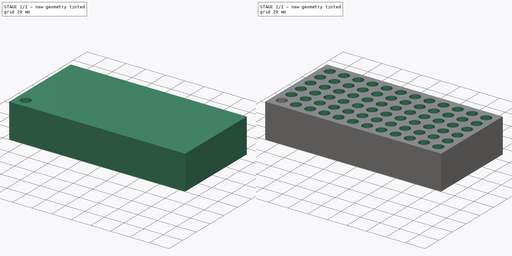
[diagram: build sequence overview — one tinted view per stage of 2, left to right]
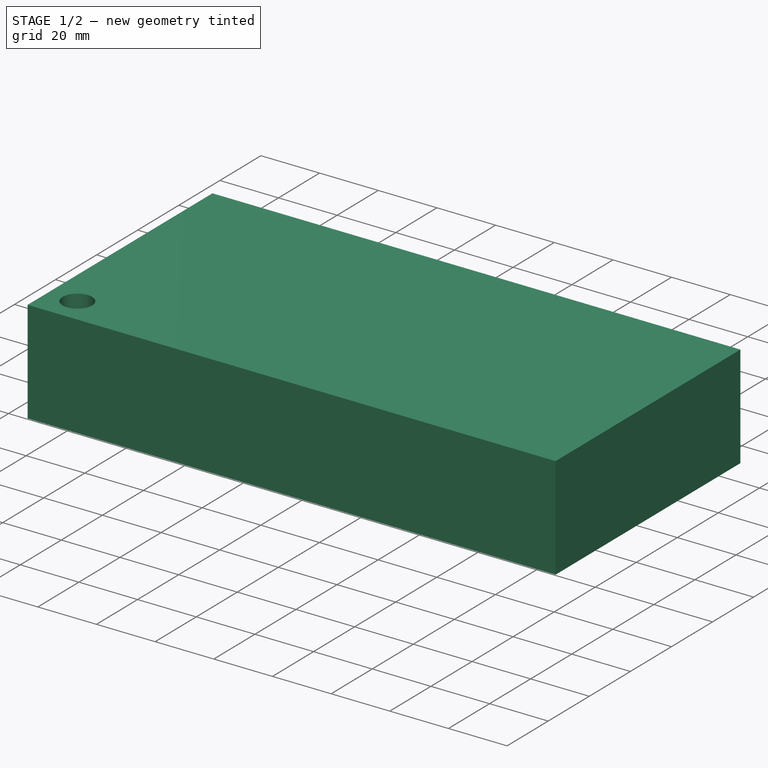
[diagram: stage 1 of 2 — iso view after this stage's code; geometry added in this stage tinted green]
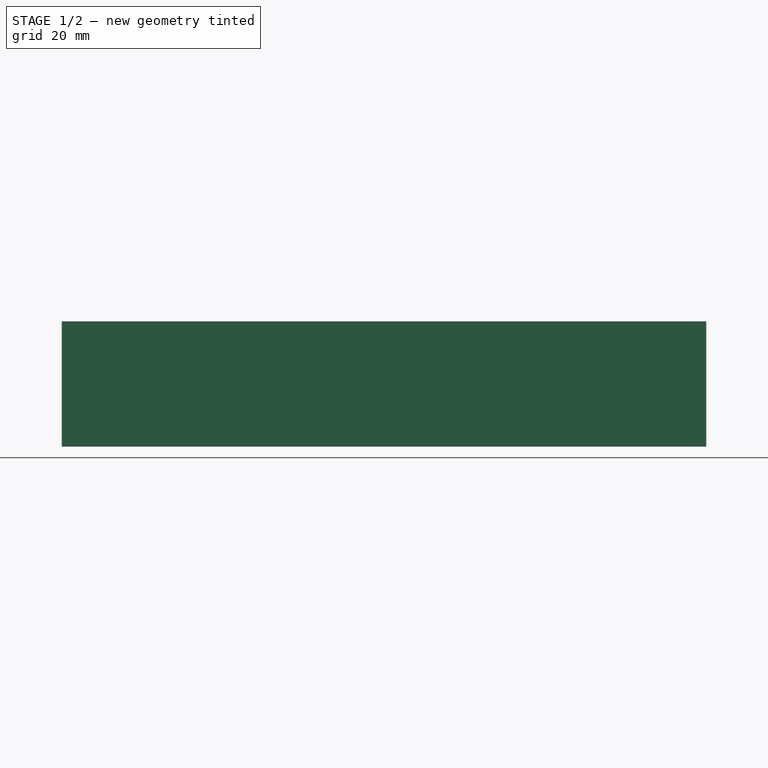
[diagram: stage 1 of 2 — front view after this stage's code; geometry added in this stage tinted green]
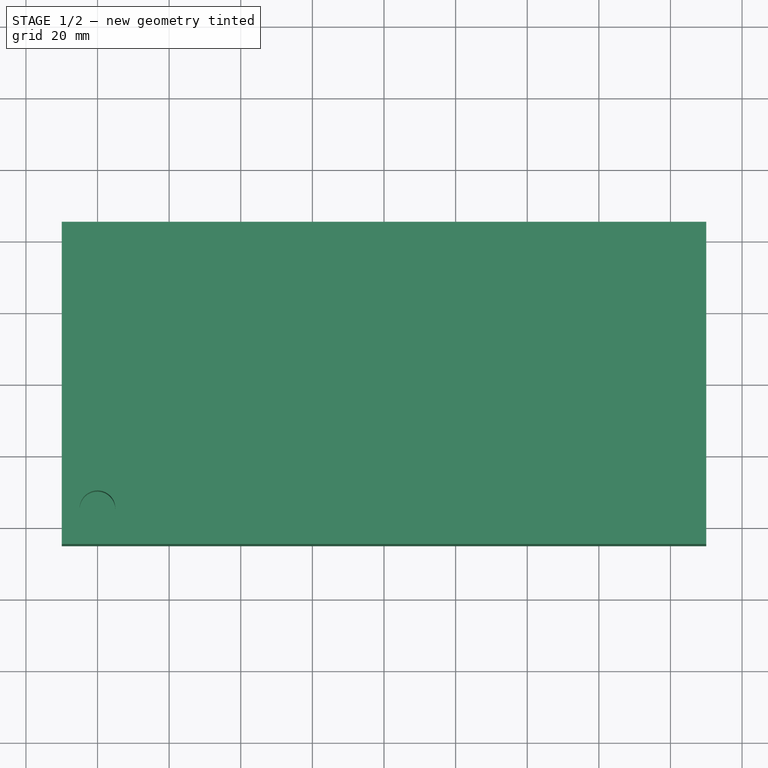
[diagram: stage 1 of 2 — top view after this stage's code; geometry added in this stage tinted green]
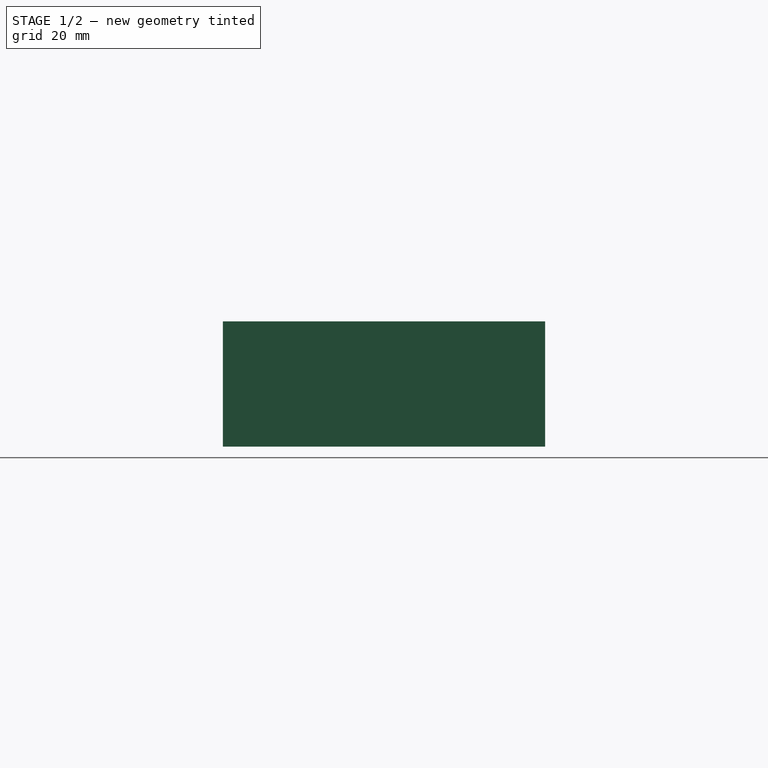
[diagram: stage 1 of 2 — right view after this stage's code; geometry added in this stage tinted green]
FCSTD DOCUMENT  (FreeCAD 0.21R33694 (Git))
Label: Ammo_Box_Parametric
License: All rights reserved
LicenseURL: http://en.wikipedia.org/wiki/All_rights_reserved
objects: Sketcher::SketchObject×3, PartDesign::Body×2, App::Part×2, PartDesign::LinearPattern×2, Spreadsheet::Sheet×1, PartDesign::Pad×1, PartDesign::Pocket×1, PartDesign::MultiTransform×1
note: 12 computed .brp shape members not serialized (recipe doc carries the construction recipe); baked Part::Feature solids carry a one-line shape summary decoded from their .brp

FEATURE [Sketcher::SketchObject] Sketch
  FullyConstrained = false
  MapMode = 5
  Support = -> [XY_Plane001]
  sketch-geometry (5):
    g0: LineSegment StartX=-48.7838 StartY=20.9073 StartZ=0 EndX=-48.7838 EndY=-20.9073 EndZ=0
    g1: LineSegment StartX=-48.7838 StartY=-20.9073 StartZ=0 EndX=48.7838 EndY=-20.9073 EndZ=0
    g2: LineSegment StartX=48.7838 StartY=-20.9073 StartZ=0 EndX=48.7838 EndY=20.9073 EndZ=0
    g3: LineSegment StartX=48.7838 StartY=20.9073 StartZ=0 EndX=-48.7838 EndY=20.9073 EndZ=0
    g4: GeomPoint X=0 Y=0 Z=0
  constraints (10):
    c: Coincident(g0,g1)
    c: Coincident(g1,g2)
    c: Coincident(g2,g3)
    c: Coincident(g3,g0)
    c: Horizontal(g1)
    c: Horizontal(g3)
    c: Vertical(g0)
    c: Vertical(g2)
    c: Symmetric(g1,g0,g4)
    c: Coincident(g4,g-1)
FEATURE [PartDesign::Body] Body
  Group = -> [Sketch]
  Origin = -> Origin001
FEATURE [App::Part] Part  label="BottomPart"
  Group = -> [Body]
  Origin = -> Origin
FEATURE [Spreadsheet::Sheet] Spreadsheet  label="p"
  cells = A1='Bottom_Box_Width_Exterior; B1(Bottom_Box_Width_Exterior)==B5 + 4; A2='Bottom_Box_Length_Exterior; B2(Bottom_Box_Length_Exterior)==B6 + 4; A3='Bottom_Box_Height_Exterior; A5='Ammo_Tray_Width; B5(Ammo_Tray_Width)=90; A6='Ammo_Tray_Length; B6(Ammo_Tray_Length)=180; A7='Ammo_Tray_Height; B7(Ammo_Tray_Height)=35; A8='Ammo_Tray_Ammo_Diameter; B8(Ammo_Tray_Ammo_Diameter)=9.98; A9='Ammo_Width_Occurrences; B9(Ammo_Width_Occurrences)=6
FEATURE [Sketcher::SketchObject] Sketch001  label="AmmoTraySketch"
  FullyConstrained = true
  MapMode = 5
  Support = -> [XY_Plane003]
  expr: Constraints[10] = <<p>>.Ammo_Tray_Length
  expr: Constraints[11] = <<p>>.Ammo_Tray_Width
  sketch-geometry (5):
    g0: LineSegment StartX=-90 StartY=45 StartZ=0 EndX=-90 EndY=-45 EndZ=0
    g1: LineSegment StartX=-90 StartY=-45 StartZ=0 EndX=90 EndY=-45 EndZ=0
    g2: LineSegment StartX=90 StartY=-45 StartZ=0 EndX=90 EndY=45 EndZ=0
    g3: LineSegment StartX=90 StartY=45 StartZ=0 EndX=-90 EndY=45 EndZ=0
    g4: GeomPoint X=0 Y=0 Z=0
  constraints (12):
    c: Coincident(g0,g1)
    c: Coincident(g1,g2)
    c: Coincident(g2,g3)
    c: Coincident(g3,g0)
    c: Horizontal(g1)
    c: Horizontal(g3)
    c: Vertical(g0)
    c: Vertical(g2)
    c: Symmetric(g1,g0,g4)
    c: Coincident(g4,g-1)
    c: DistanceX(g3,g3) = 180
    c: DistanceY(g0,g0) = 90
FEATURE [PartDesign::Pad] Pad  label="AmmoTrayPad"
  Direction = (0,0,1)
  Length = 35
  Length2 = 10
  Profile = -> Sketch001
  ReferenceAxis = -> Sketch001 [N_Axis]
  Type = 0
  expr: Length = <<p>>.Ammo_Tray_Height
FEATURE [Sketcher::SketchObject] Sketch002  label="AmmoTrayAmmoSketch"
  AttachmentOffset = pos=(0,0,35) rot=(0,0,1;0rad)
  FullyConstrained = true
  MapMode = 5
  Placement = pos=(0,0,35) rot=(0,0,1;0rad)
  Support = -> [XY_Plane003]
  expr: .AttachmentOffset.Base.z = <<p>>.Ammo_Tray_Height
  expr: Constraints[0] = <<p>>.Ammo_Tray_Ammo_Diameter
  expr: Constraints[1] = <<p>>.Ammo_Tray_Length / 2 - <<p>>.Ammo_Tray_Ammo_Diameter
  expr: Constraints[2] = <<p>>.Ammo_Tray_Width / 2 - <<p>>.Ammo_Tray_Ammo_Diameter
  sketch-geometry (1):
    g0: Circle CenterX=-80.02 CenterY=-35.02 CenterZ=0 NormalX=0 NormalY=0 NormalZ=1 AngleXU=0 Radius=4.99
  constraints (3):
    c: Diameter(g0) = 9.98
    c: DistanceX(g0,g-1) = 80.02
    c: DistanceY(g0,g-1) = 35.02
FEATURE [PartDesign::Pocket] Pocket  label="AmmoTrayAmmoPad"
  BaseFeature = -> Pad
  Direction = (0,0,-1)
  Length = 20
  Length2 = 5
  Profile = -> Sketch002
  ReferenceAxis = -> Sketch002 [N_Axis]
  Type = 0
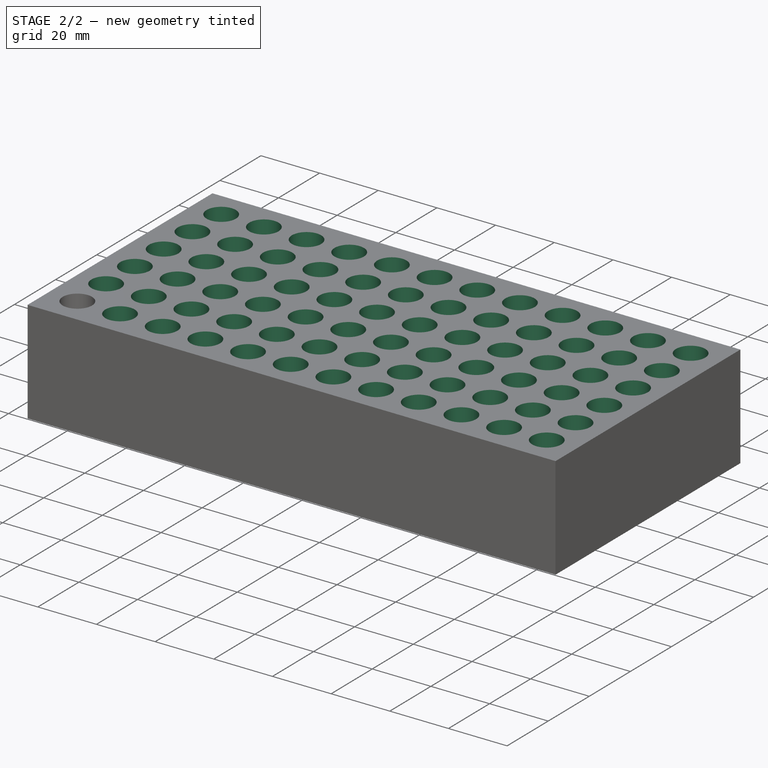
[diagram: stage 2 of 2 — iso view after this stage's code; geometry added in this stage tinted green]
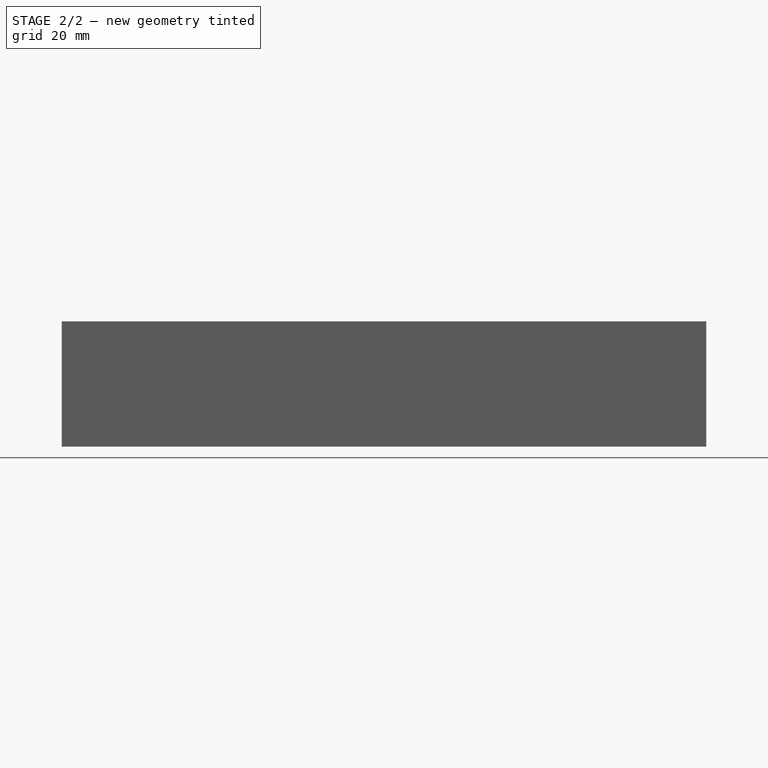
[diagram: stage 2 of 2 — front view after this stage's code; geometry added in this stage tinted green]
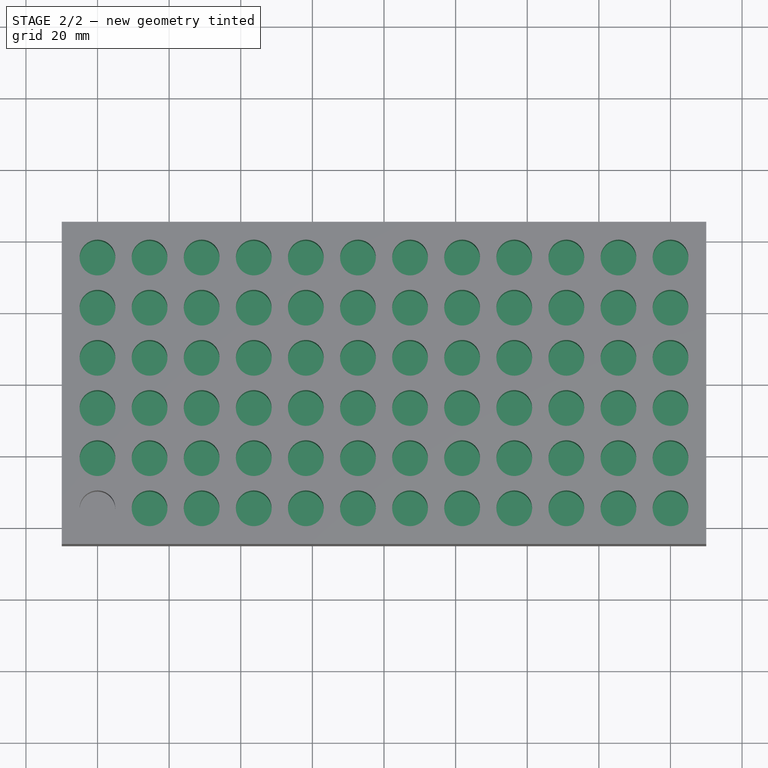
[diagram: stage 2 of 2 — top view after this stage's code; geometry added in this stage tinted green]
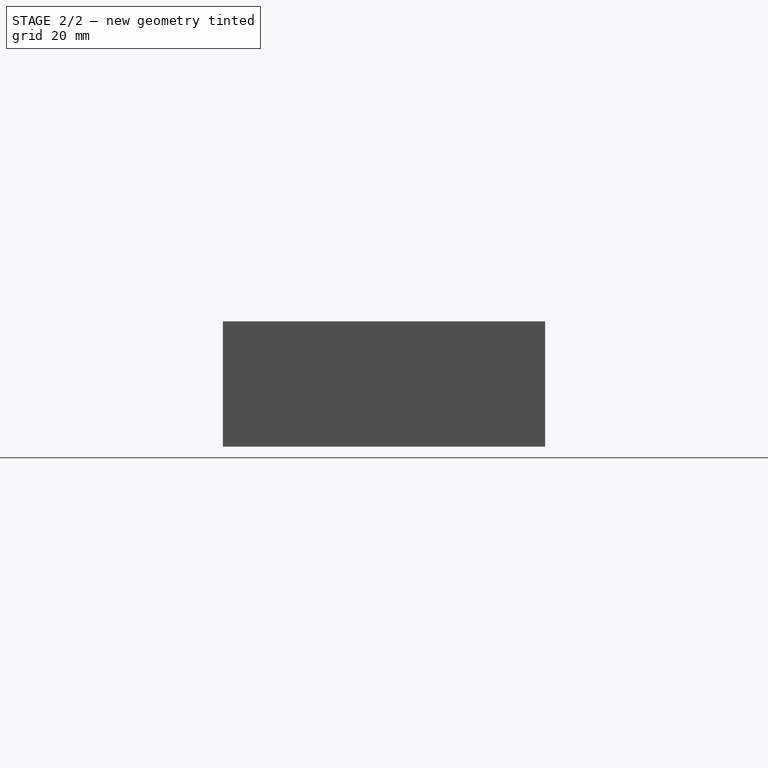
[diagram: stage 2 of 2 — right view after this stage's code; geometry added in this stage tinted green]
FEATURE [PartDesign::LinearPattern] LinearPattern
  Direction = -> Y_Axis003
  Length = 70.04
  Occurrences = 6
  expr: Length = <<p>>.Ammo_Tray_Width - 2 * <<p>>.Ammo_Tray_Ammo_Diameter
  expr: Occurrences = <<p>>.Ammo_Width_Occurrences
FEATURE [PartDesign::LinearPattern] LinearPattern001
  Direction = -> Sketch002 [H_Axis]
  Length = 160.04
  Occurrences = 12
  expr: Length = <<p>>.Ammo_Tray_Length - 2 * <<p>>.Ammo_Tray_Ammo_Diameter
  expr: Occurrences = <<p>>.Ammo_Width_Occurrences * 2
FEATURE [PartDesign::MultiTransform] MultiTransform  label="AmmoTrayAmmoMultiTransform"
  BaseFeature = -> Pocket
  Originals = -> [Pocket]
  Transformations = -> [LinearPattern,LinearPattern001]
FEATURE [PartDesign::Body] Body001  label="AmmoTrayBody"
  Group = -> [Sketch001,Pad,Sketch002,Pocket,MultiTransform,LinearPattern,LinearPattern001]
  Origin = -> Origin003
  Tip = -> MultiTransform
FEATURE [App::Part] Part001  label="AmmoTrayPart"
  Group = -> [Body001]
  Origin = -> Origin002
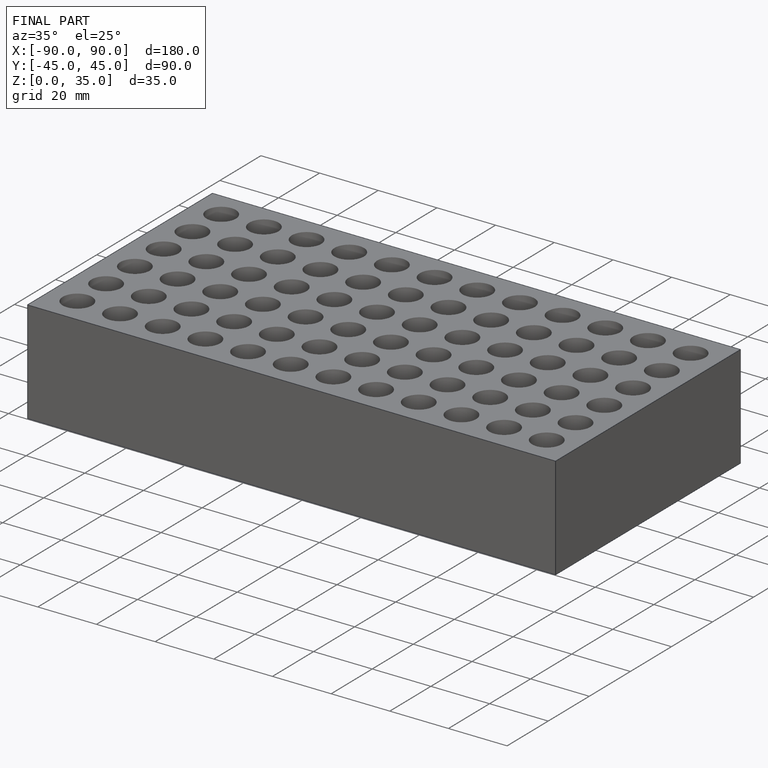
[diagram: finished part — iso view with bounding-box wireframe]
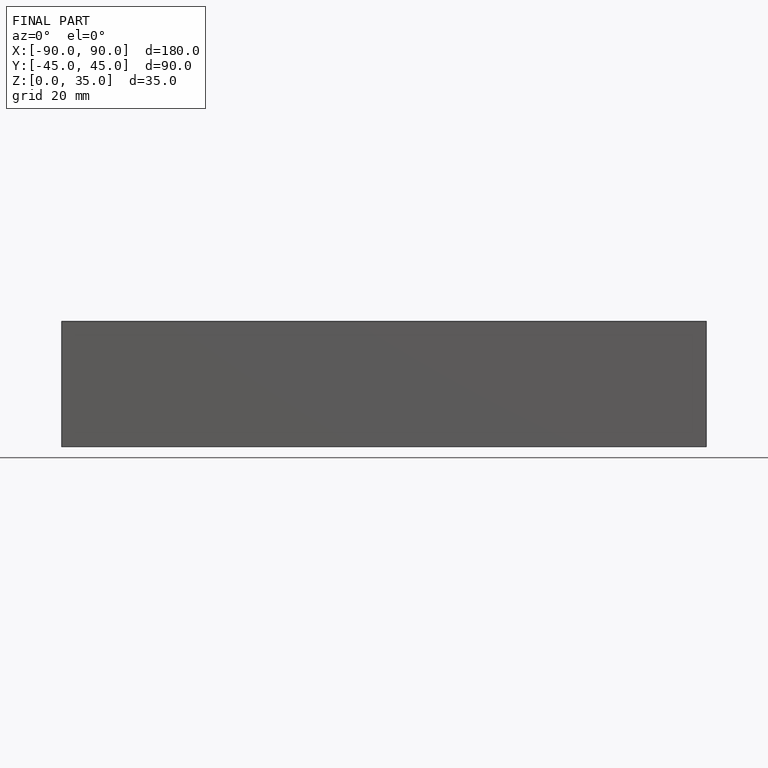
[diagram: finished part — front view with bounding-box wireframe]
